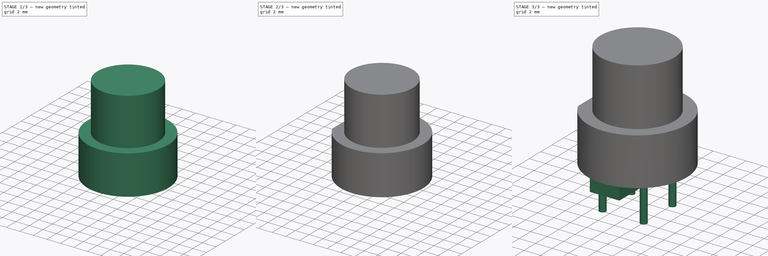
[diagram: build sequence overview — one tinted view per stage of 3, left to right]
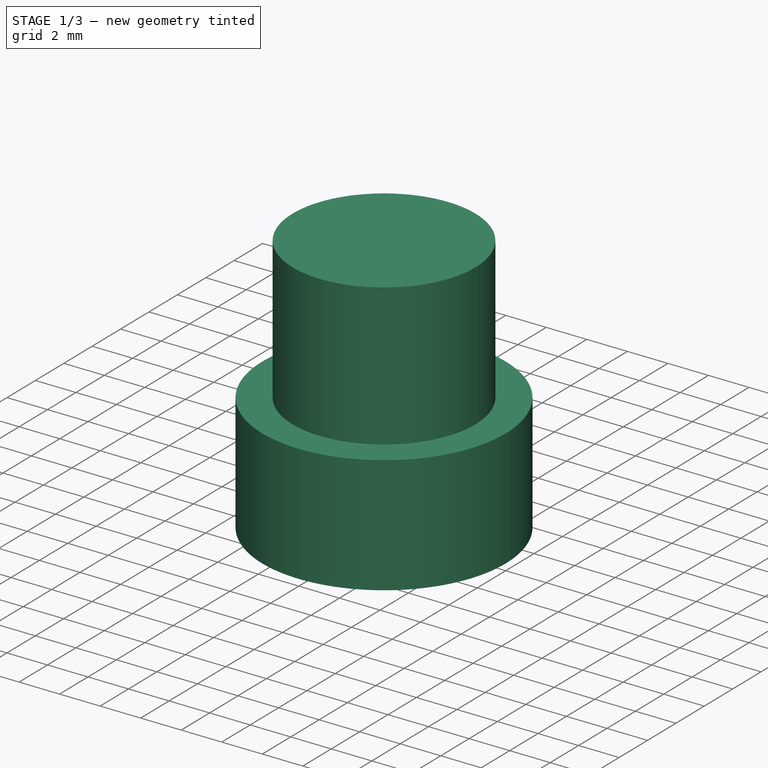
[diagram: stage 1 of 3 — iso view after this stage's code; geometry added in this stage tinted green]
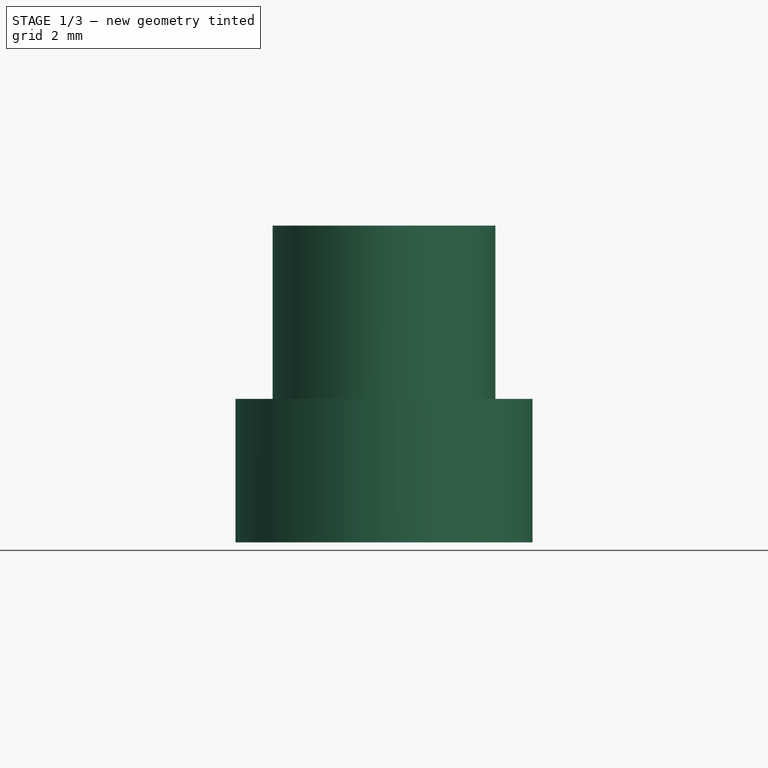
[diagram: stage 1 of 3 — front view after this stage's code; geometry added in this stage tinted green]
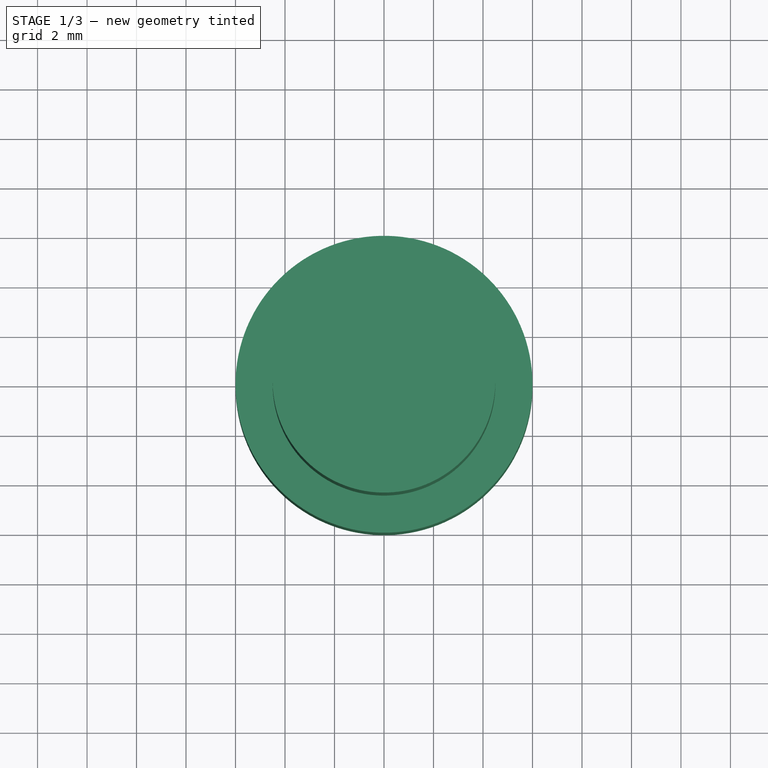
[diagram: stage 1 of 3 — top view after this stage's code; geometry added in this stage tinted green]
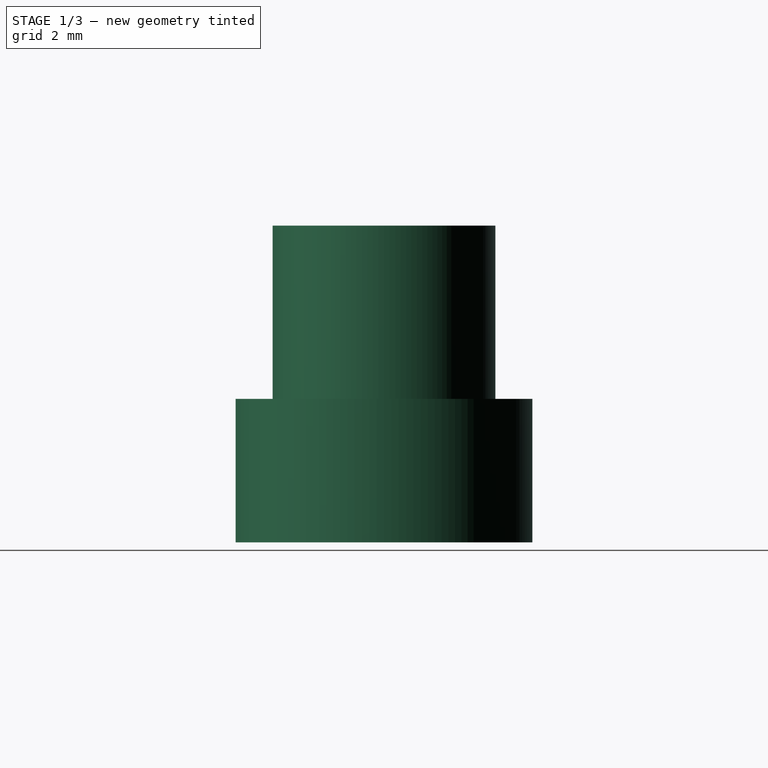
[diagram: stage 1 of 3 — right view after this stage's code; geometry added in this stage tinted green]
FCSTD DOCUMENT  (FreeCAD 0.15R4671 (Git))
Label: D6R00 pushbutton
License: All rights reserved
LicenseURL: http://en.wikipedia.org/wiki/All_rights_reserved
objects: Sketcher::SketchObject×5, PartDesign::Pad×4, PartDesign::Pocket×1
note: 15 computed .brp shape members not serialized (recipe doc carries the construction recipe); baked Part::Feature solids carry a one-line shape summary decoded from their .brp

FEATURE [Sketcher::SketchObject] Sketch
  sketch-geometry (1):
    g0: Circle CenterX=0 CenterY=0 CenterZ=0 NormalX=0 NormalY=0 NormalZ=1 Radius=6
  constraints (2):
    c: Coincident(g0,g-1)
    c: Radius(g0) = 6
FEATURE [PartDesign::Pad] Pad
  Length = 5.8
  Length2 = 100
  Sketch = -> Sketch
  Type = 0
FEATURE [Sketcher::SketchObject] Sketch001
  Placement = pos=(0,0,5.8) rot=(0,0,1;0rad)
  Support = -> Pad [Face3]
  sketch-geometry (1):
    g0: Circle CenterX=0 CenterY=0 CenterZ=0 NormalX=0 NormalY=0 NormalZ=1 Radius=4.5
  constraints (2):
    c: Coincident(g0,g-1)
    c: Radius(g0) = 4.5
FEATURE [PartDesign::Pad] Pad001
  Length = 7
  Length2 = 100
  Sketch = -> Sketch001
  Type = 0
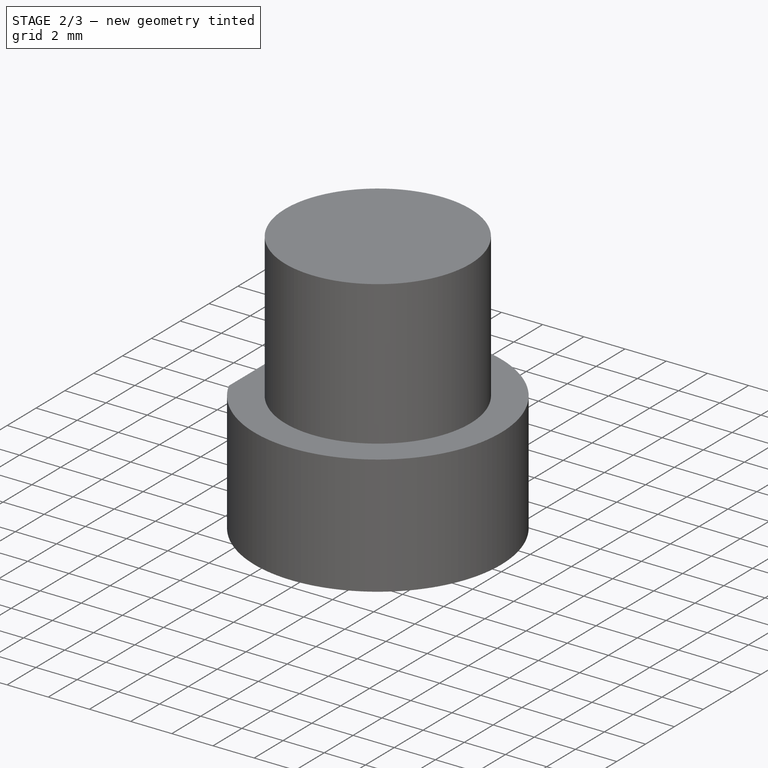
[diagram: stage 2 of 3 — iso view after this stage's code; geometry added in this stage tinted green]
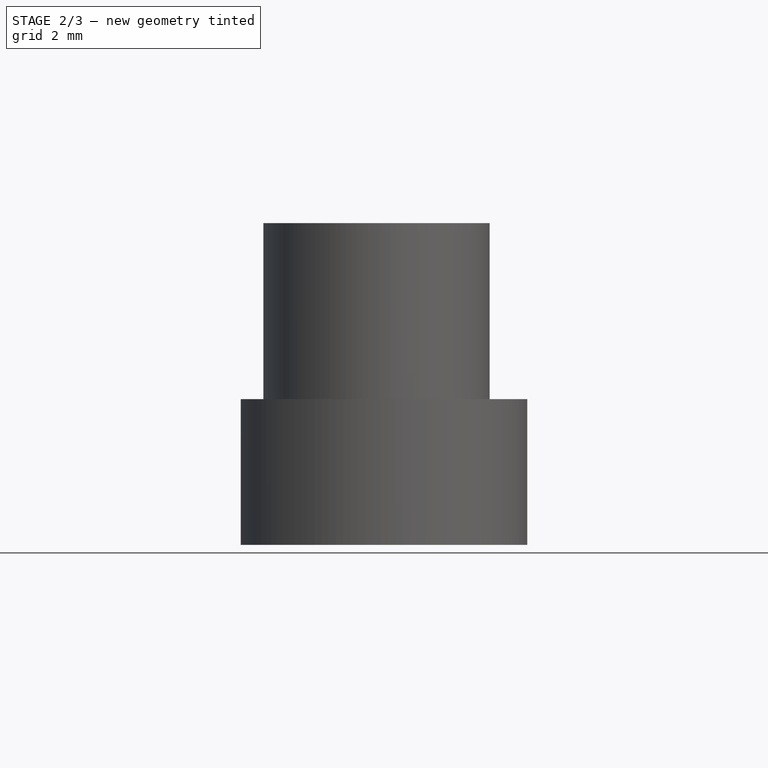
[diagram: stage 2 of 3 — front view after this stage's code; geometry added in this stage tinted green]
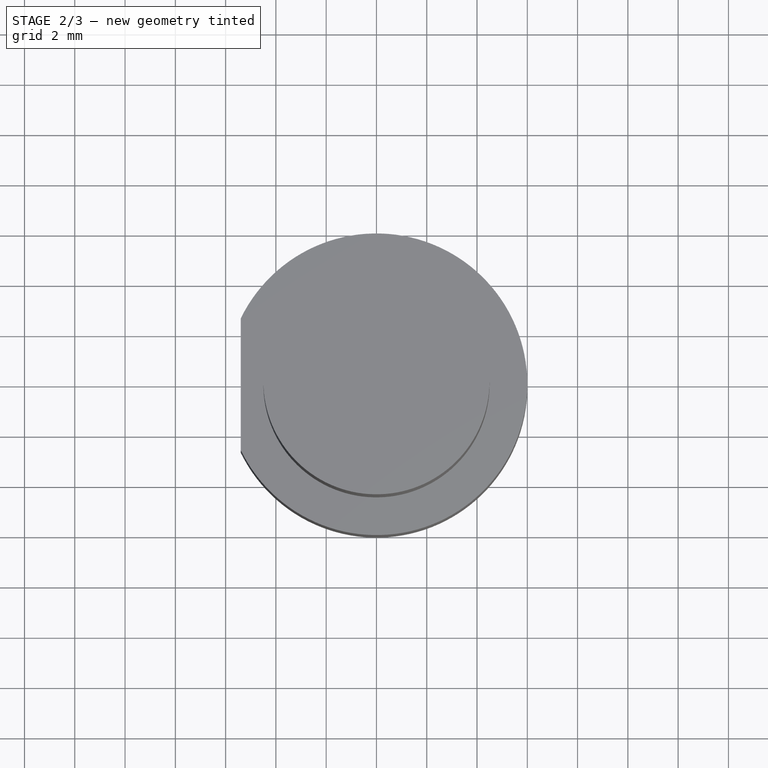
[diagram: stage 2 of 3 — top view after this stage's code; geometry added in this stage tinted green]
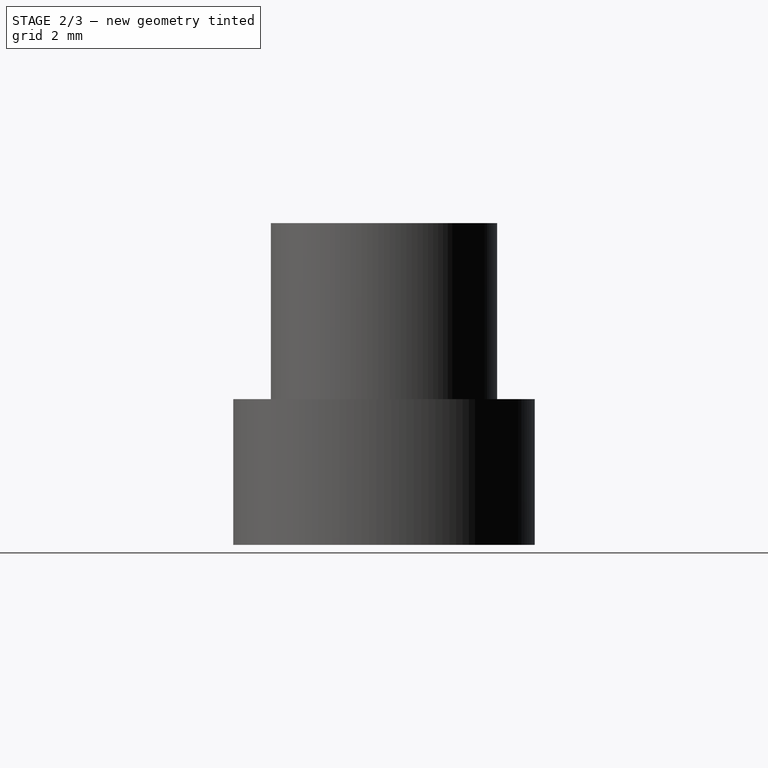
[diagram: stage 2 of 3 — right view after this stage's code; geometry added in this stage tinted green]
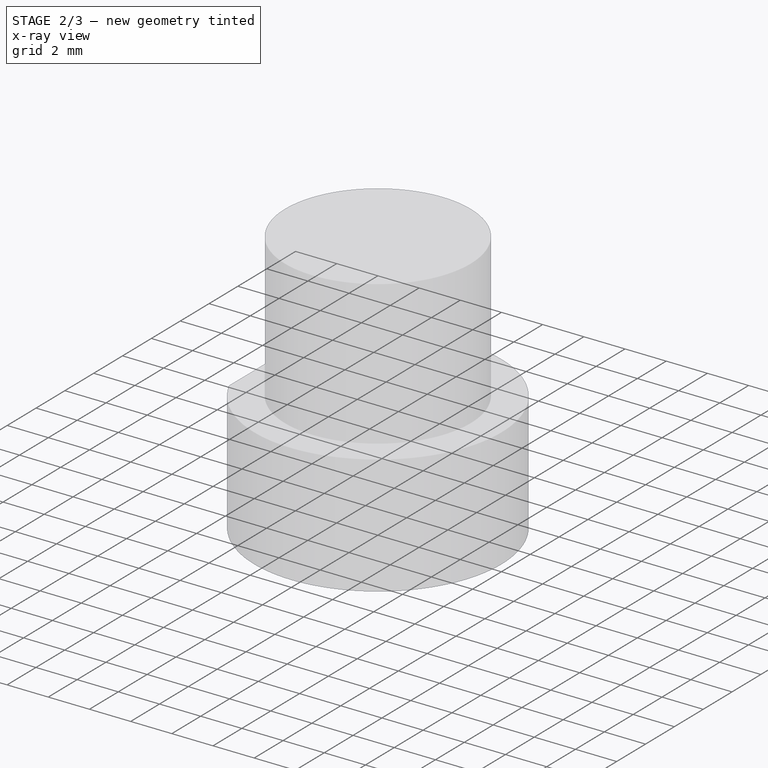
[diagram: stage 2 of 3 — x-ray composite at the iso view; earlier geometry ghosted, this stage's added geometry solid]
FEATURE [Sketcher::SketchObject] Sketch002
  ExternalGeometry = -> [Pad001]
  Placement = pos=(0,0,5.8) rot=(0,0,1;0rad)
  Support = -> Pad001 [Face3]
  sketch-geometry (7):
    g0: LineSegment StartX=-5.4 StartY=6 StartZ=0 EndX=-6 EndY=6 EndZ=0
    g1: LineSegment StartX=-6 StartY=6 StartZ=0 EndX=-6 EndY=-6 EndZ=0
    g2: LineSegment StartX=-6 StartY=-6 StartZ=0 EndX=-5.4 EndY=-6 EndZ=0
    g3: LineSegment StartX=-5.4 StartY=-6 StartZ=0 EndX=-5.4 EndY=6 EndZ=0
    g4: LineSegment [constr] StartX=0 StartY=6 StartZ=0 EndX=0 EndY=-6 EndZ=0
    g5: LineSegment [constr] StartX=-5.4 StartY=6 StartZ=0 EndX=0 EndY=6 EndZ=0
    g6: LineSegment [constr] StartX=-5.4 StartY=-6 StartZ=0 EndX=0 EndY=-6 EndZ=0
  constraints (20):
    c: Coincident(g0,g1)
    c: Coincident(g1,g2)
    c: Coincident(g2,g3)
    c: Coincident(g3,g0)
    c: Horizontal(g0)
    c: Horizontal(g2)
    c: Vertical(g1)
    c: Vertical(g3)
    c: Tangent(g1,g-3)
    c: DistanceX(g-1,g0) = -5.4
    c: PointOnObject(g4,g-3)
    c: PointOnObject(g4,g-3)
    c: Vertical(g4)
    c: PointOnObject(g4,g-2)
    c: Coincident(g5,g0)
    c: Coincident(g5,g4)
    c: Horizontal(g5)
    c: Coincident(g6,g2)
    c: Coincident(g6,g4)
    c: Horizontal(g6)
FEATURE [PartDesign::Pocket] Pocket
  Length = 6
  Sketch = -> Sketch002
  Type = 0
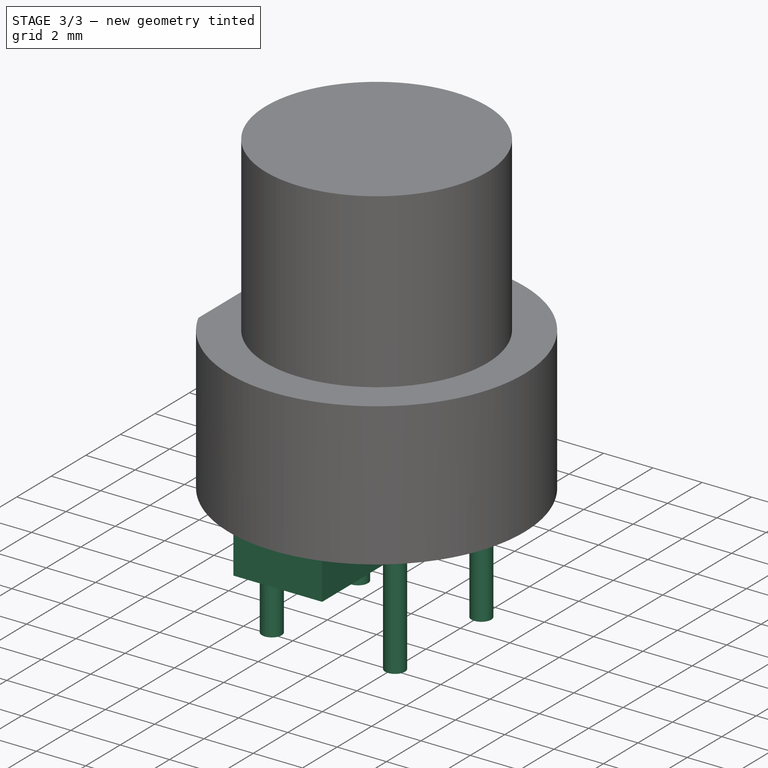
[diagram: stage 3 of 3 — iso view after this stage's code; geometry added in this stage tinted green]
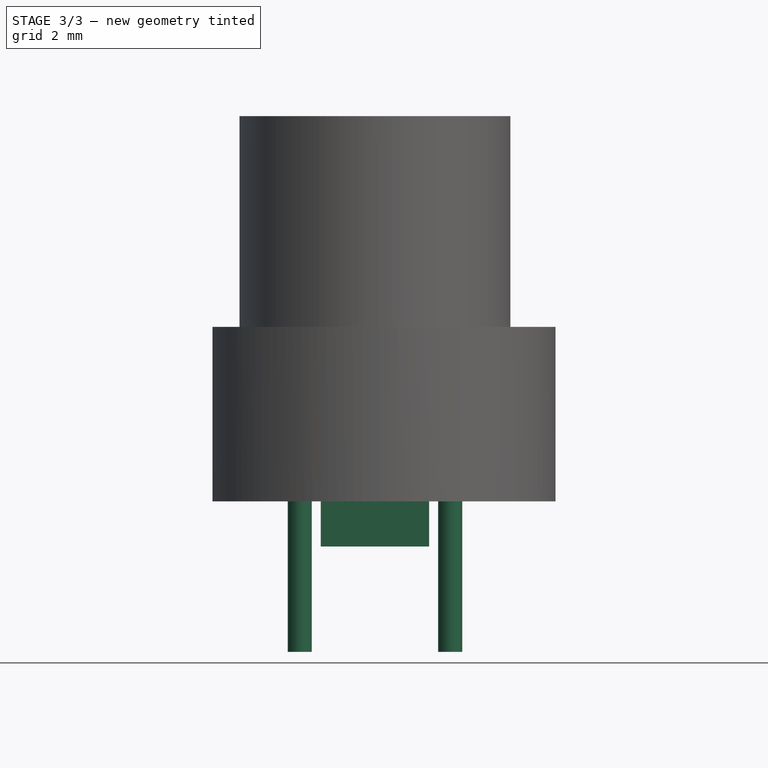
[diagram: stage 3 of 3 — front view after this stage's code; geometry added in this stage tinted green]
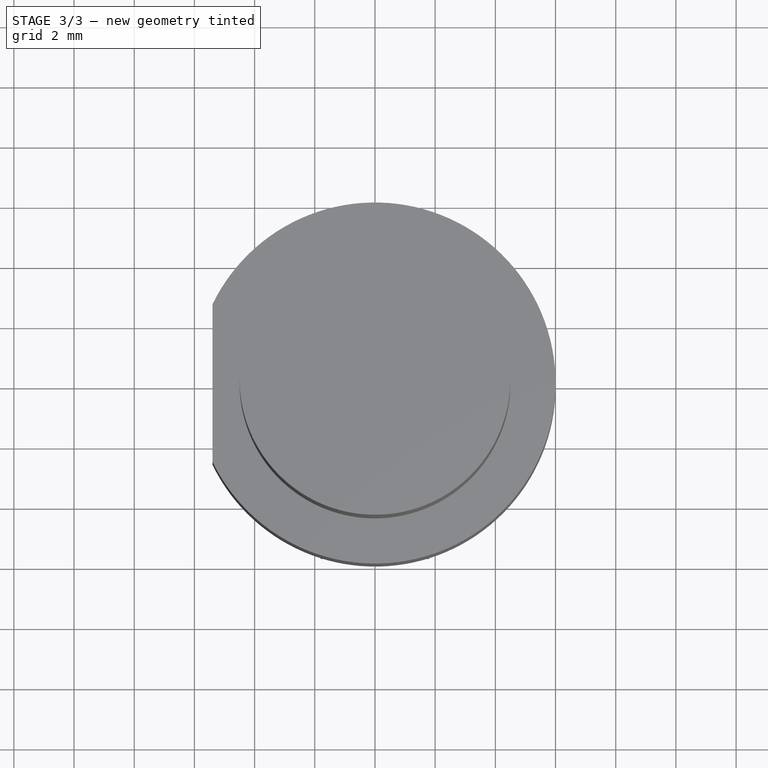
[diagram: stage 3 of 3 — top view after this stage's code; geometry added in this stage tinted green]
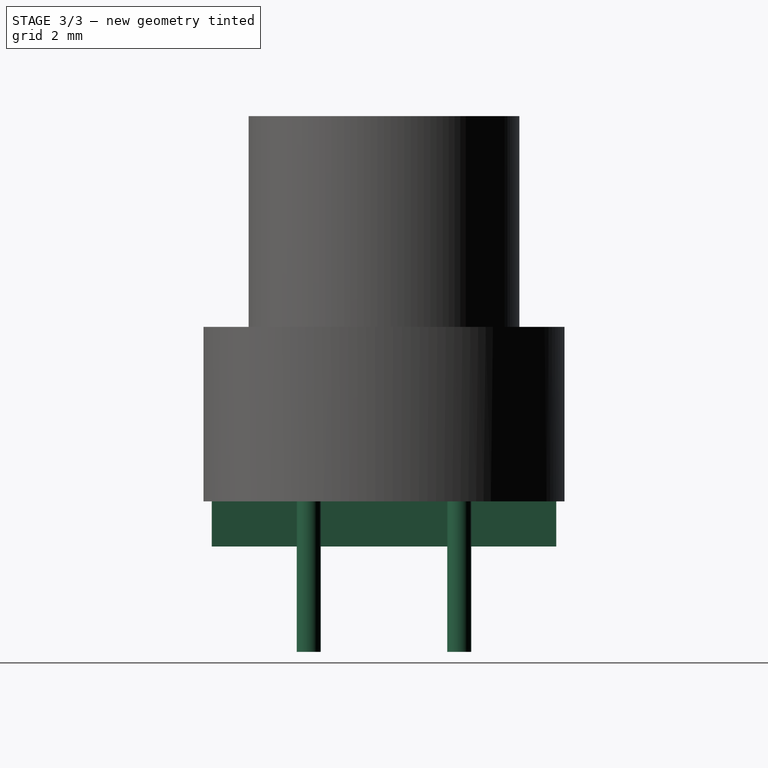
[diagram: stage 3 of 3 — right view after this stage's code; geometry added in this stage tinted green]
FEATURE [Sketcher::SketchObject] Sketch003
  Placement = pos=(0,0,0) rot=(1,0,0;3.14159rad)
  Support = -> Pocket [Face2]
  sketch-geometry (8):
    g0: Circle CenterX=-2.5 CenterY=2.5 CenterZ=0 NormalX=0 NormalY=0 NormalZ=1 Radius=0.4
    g1: Circle CenterX=2.5 CenterY=2.5 CenterZ=0 NormalX=0 NormalY=0 NormalZ=1 Radius=0.4
    g2: Circle CenterX=-2.5 CenterY=-2.5 CenterZ=0 NormalX=0 NormalY=0 NormalZ=1 Radius=0.4
    g3: Circle CenterX=2.5 CenterY=-2.5 CenterZ=0 NormalX=0 NormalY=0 NormalZ=1 Radius=0.4
    g4: LineSegment [constr] StartX=-2.5 StartY=2.5 StartZ=0 EndX=2.5 EndY=2.5 EndZ=0
    g5: LineSegment [constr] StartX=-2.5 StartY=2.5 StartZ=0 EndX=-2.5 EndY=-2.5 EndZ=0
    g6: LineSegment [constr] StartX=-2.5 StartY=-2.5 StartZ=0 EndX=2.5 EndY=-2.5 EndZ=0
    g7: LineSegment [constr] StartX=2.5 StartY=2.5 StartZ=0 EndX=2.5 EndY=-2.5 EndZ=0
  constraints (20):
    c: DistanceX(g0,g1) = 5
    c: DistanceY(g2,g0) = 5
    c: Coincident(g4,g0)
    c: Coincident(g4,g1)
    c: Horizontal(g4)
    c: Coincident(g5,g0)
    c: Coincident(g5,g2)
    c: Vertical(g5)
    c: Coincident(g6,g2)
    c: Coincident(g6,g3)
    c: Horizontal(g6)
    c: Coincident(g7,g1)
    c: Coincident(g7,g3)
    c: Vertical(g7)
    c: Symmetric(g0,g2,g-1)
    c: Symmetric(g0,g1,g-2)
    c: Equal(g2,g0)
    c: Equal(g0,g1)
    c: Equal(g1,g3)
    c: Radius(g0) = 0.4
FEATURE [PartDesign::Pad] Pad002
  Length = 5
  Length2 = 100
  Sketch = -> Sketch003
  Type = 0
FEATURE [Sketcher::SketchObject] Sketch004
  ExternalGeometry = -> [Pad002]
  Placement = pos=(0,0,0) rot=(1,0,0;3.14159rad)
  Support = -> Pad002 [Face2]
  sketch-geometry (4):
    g0: LineSegment StartX=-1.8 StartY=5.72364 StartZ=0 EndX=1.8 EndY=5.72364 EndZ=0
    g1: LineSegment StartX=1.8 StartY=5.72364 StartZ=0 EndX=1.8 EndY=-5.72364 EndZ=0
    g2: LineSegment StartX=1.8 StartY=-5.72364 StartZ=0 EndX=-1.8 EndY=-5.72364 EndZ=0
    g3: LineSegment StartX=-1.8 StartY=-5.72364 StartZ=0 EndX=-1.8 EndY=5.72364 EndZ=0
  constraints (12):
    c: Coincident(g0,g1)
    c: Coincident(g1,g2)
    c: Coincident(g2,g3)
    c: Coincident(g3,g0)
    c: Horizontal(g0)
    c: Horizontal(g2)
    c: Vertical(g1)
    c: Vertical(g3)
    c: Symmetric(g0,g0,g-2)
    c: Symmetric(g0,g2,g-1)
    c: PointOnObject(g0,g-3)
    c: DistanceX(g0,g-3) = 4.2
FEATURE [PartDesign::Pad] Pad003
  Length = 1.5
  Length2 = 100
  Sketch = -> Sketch004
  Type = 0
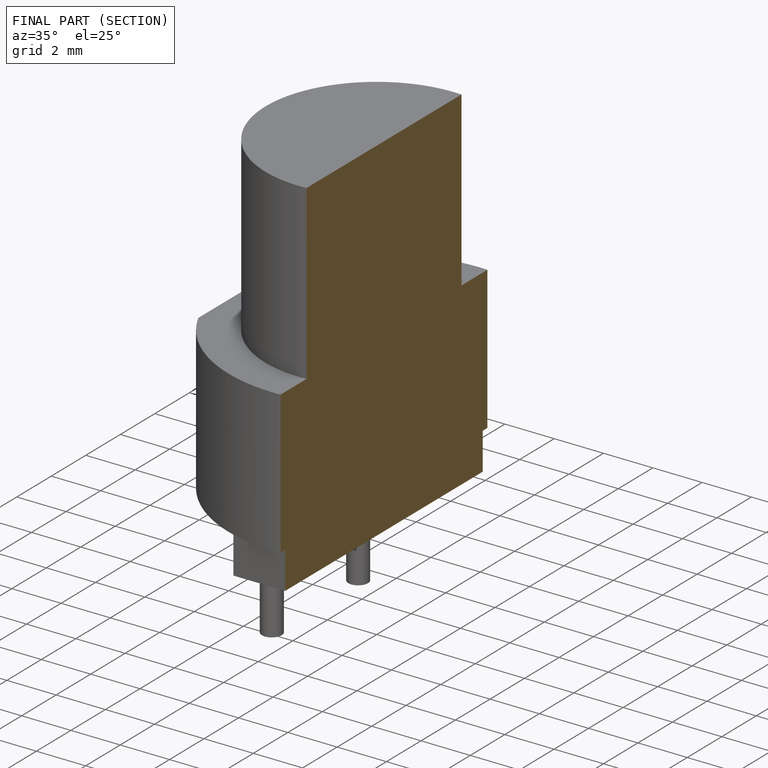
[diagram: finished part — half-section view (interior)]
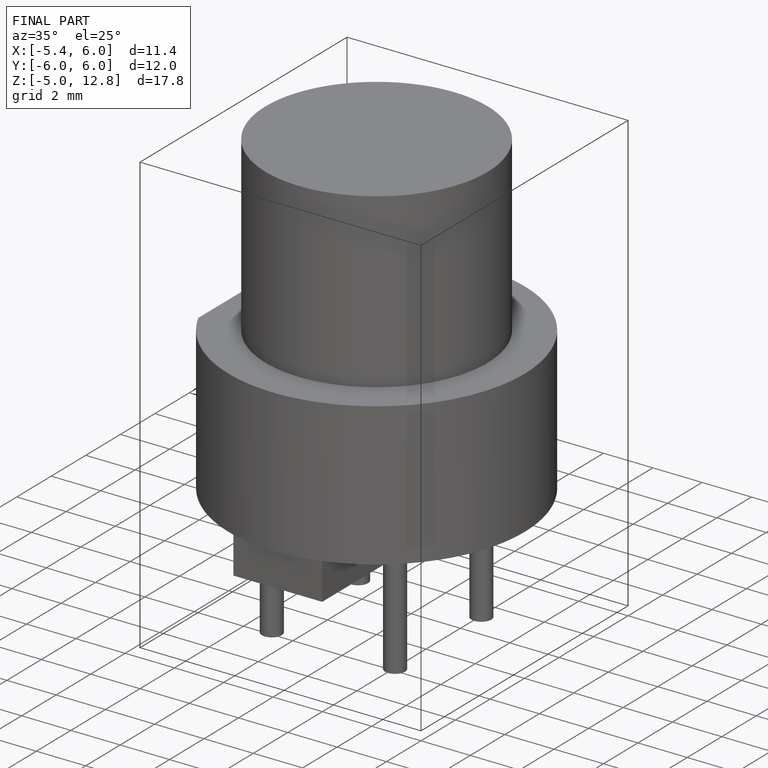
[diagram: finished part — iso view with bounding-box wireframe]
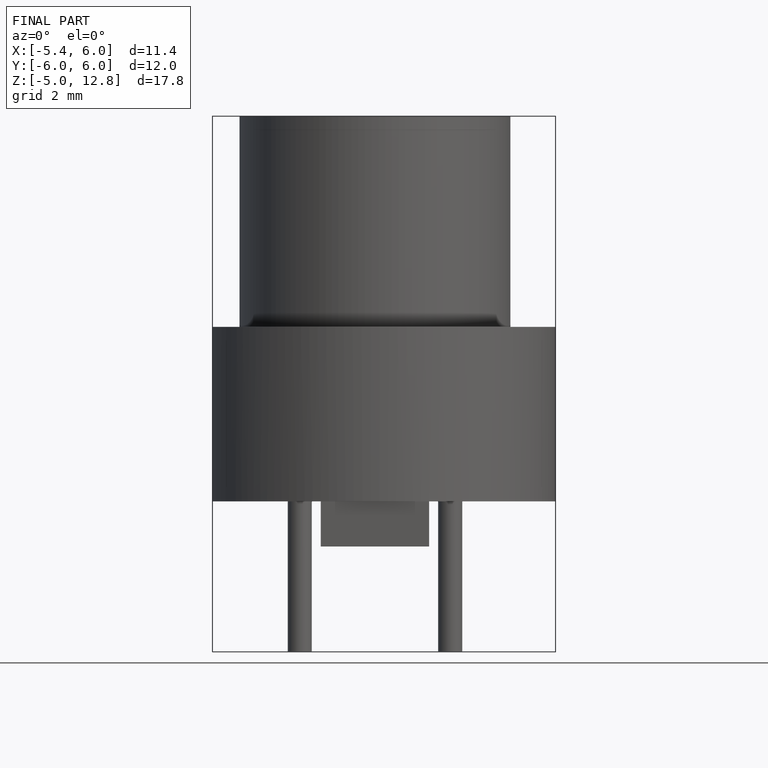
[diagram: finished part — front view with bounding-box wireframe]
